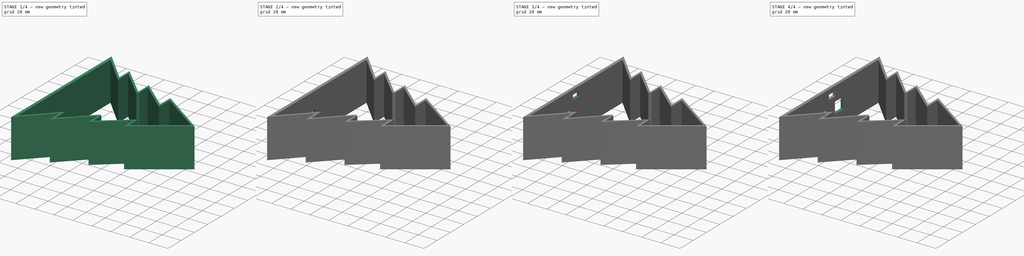
[diagram: build sequence overview — one tinted view per stage of 4, left to right]
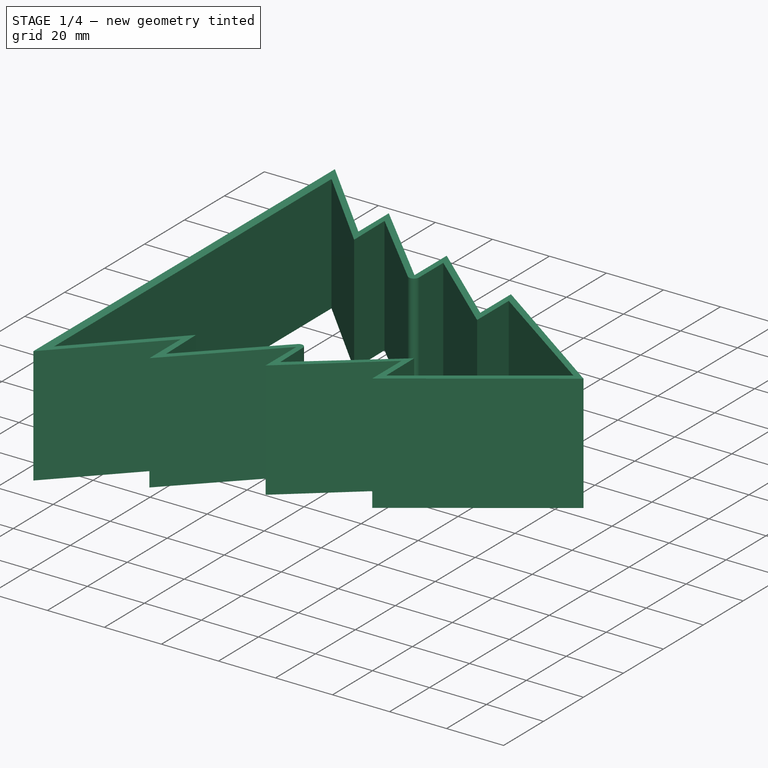
[diagram: stage 1 of 4 — iso view after this stage's code; geometry added in this stage tinted green]
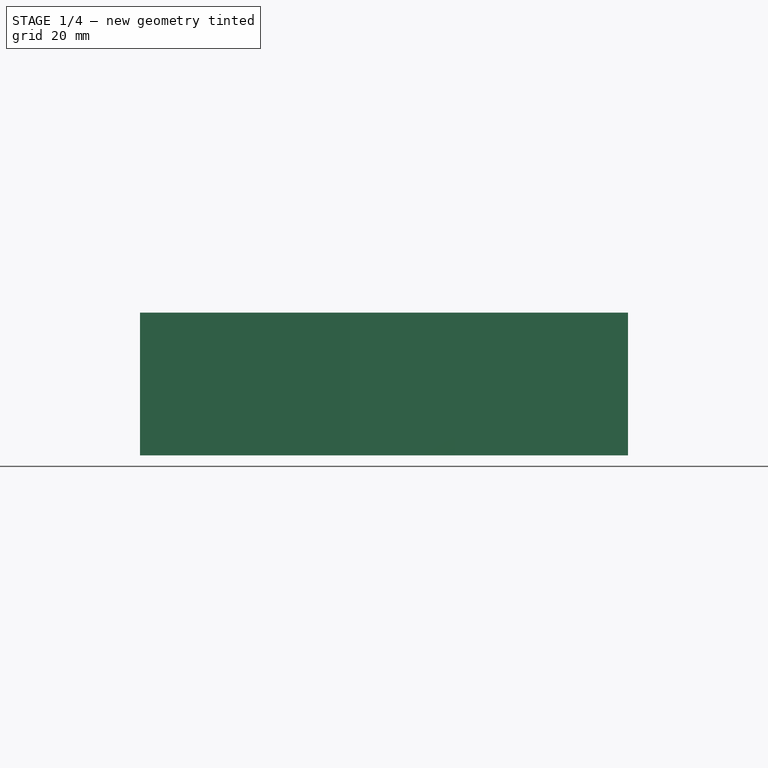
[diagram: stage 1 of 4 — front view after this stage's code; geometry added in this stage tinted green]
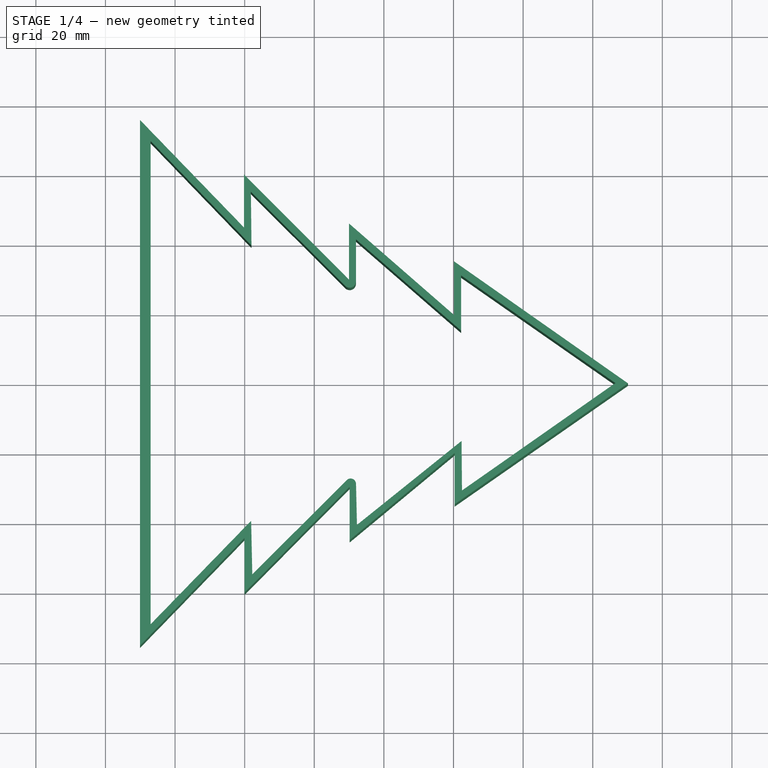
[diagram: stage 1 of 4 — top view after this stage's code; geometry added in this stage tinted green]
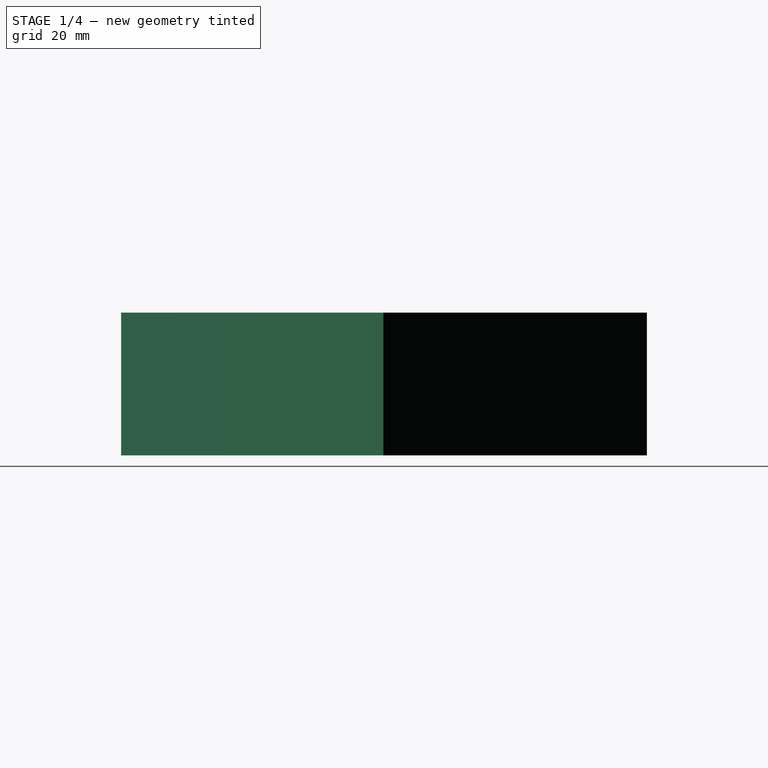
[diagram: stage 1 of 4 — right view after this stage's code; geometry added in this stage tinted green]
FCSTD DOCUMENT  (FreeCAD 0.14R3702 (Git))
Label: piece3I
License: CC-BY 3.0
LicenseURL: http://creativecommons.org/licenses/by/3.0/
objects: Part::Cut×5, Part::Box×3, Sketcher::SketchObject×2, Part::Cylinder×2, PartDesign::Pad×1, PartDesign::Pocket×1
note: 16 computed .brp shape members not serialized (recipe doc carries the construction recipe); baked Part::Feature solids carry a one-line shape summary decoded from their .brp

FEATURE [Sketcher::SketchObject] Sketch
  sketch-geometry (15):
    g0: LineSegment StartX=-130.081 StartY=75.5194 StartZ=0 EndX=-130.081 EndY=-75.5262 EndZ=0
    g1: LineSegment StartX=-130.081 StartY=75.5194 StartZ=0 EndX=-100.203 EndY=44.6299 EndZ=0
    g2: LineSegment StartX=-100.203 StartY=44.6299 StartZ=0 EndX=-100.203 EndY=59.8569 EndZ=0
    g3: LineSegment StartX=-100.203 StartY=59.8569 StartZ=0 EndX=-70.0242 EndY=29.6287 EndZ=0
    g4: LineSegment StartX=-70.0242 StartY=29.6287 StartZ=0 EndX=-70.0242 EndY=45.7666 EndZ=0
    g5: LineSegment StartX=-70.0242 StartY=45.7666 StartZ=0 EndX=-39.8749 EndY=19.5074 EndZ=0
    g6: LineSegment StartX=-39.8749 StartY=19.5074 StartZ=0 EndX=-39.8749 EndY=34.9099 EndZ=0
    g7: LineSegment StartX=-39.8749 StartY=34.9099 StartZ=0 EndX=10.1503 EndY=-0.184029 EndZ=0
    g8: LineSegment StartX=10.1503 StartY=-0.184029 StartZ=0 EndX=-39.6664 EndY=-34.9007 EndZ=0
    g9: LineSegment StartX=-39.6664 StartY=-34.9007 StartZ=0 EndX=-39.6664 EndY=-20.2105 EndZ=0
    g10: LineSegment StartX=-39.6664 StartY=-20.2105 StartZ=0 EndX=-69.8406 EndY=-45.2013 EndZ=0
    g11: LineSegment StartX=-69.8406 StartY=-45.2013 StartZ=0 EndX=-69.8406 EndY=-29.8528 EndZ=0
    g12: LineSegment StartX=-69.8406 StartY=-29.8528 StartZ=0 EndX=-100.046 EndY=-60.2838 EndZ=0
    g13: LineSegment StartX=-100.046 StartY=-60.2838 StartZ=0 EndX=-100.046 EndY=-44.6211 EndZ=0
    g14: LineSegment StartX=-100.046 StartY=-44.6211 StartZ=0 EndX=-130.081 EndY=-75.5262 EndZ=0
  constraints (22):
    c: Vertical(g0)
    c: Coincident(g1,g0)
    c: Coincident(g1,g2)
    c: Vertical(g2)
    c: Coincident(g2,g3)
    c: Coincident(g3,g4)
    c: Vertical(g4)
    c: Coincident(g4,g5)
    c: Coincident(g5,g6)
    c: Vertical(g6)
    c: Coincident(g6,g7)
    c: Coincident(g7,g8)
    c: Coincident(g8,g9)
    c: Vertical(g9)
    c: Coincident(g9,g10)
    c: Coincident(g10,g11)
    c: Vertical(g11)
    c: Coincident(g11,g12)
    c: Coincident(g12,g13)
    c: Vertical(g13)
    c: Coincident(g13,g14)
    c: Coincident(g14,g0)
FEATURE [PartDesign::Pad] Pad001  label="forme_sapin"
  Length = 41
  Length2 = 100
  Sketch = -> Sketch
  Type = 0
FEATURE [Sketcher::SketchObject] Sketch001
  Placement = pos=(0,0,41) rot=(0,0,1;0rad)
  Support = -> Pad001 [Face17]
  sketch-geometry (41):
    g0: LineSegment StartX=-127.035 StartY=69.4745 StartZ=0 EndX=-127.035 EndY=-69.4073 EndZ=0
    g1: LineSegment StartX=-127.035 StartY=-69.4073 StartZ=0 EndX=-98.1421 EndY=-39.6649 EndZ=0
    g2: LineSegment StartX=-98.1421 StartY=-39.6649 StartZ=0 EndX=-97.8154 EndY=-55.0678 EndZ=0
    g3: LineSegment StartX=-97.8154 StartY=-55.0678 StartZ=0 EndX=-70.6643 EndY=-27.972 EndZ=0
    g4: LineSegment StartX=-68.0098 StartY=-29.0375 StartZ=0 EndX=-67.7389 EndY=-40.8446 EndZ=0
    g5: LineSegment StartX=-67.7389 StartY=-40.8446 StartZ=0 EndX=-37.6839 EndY=-16.7159 EndZ=0
    g6: LineSegment StartX=-37.6839 StartY=-16.7159 StartZ=0 EndX=-37.5641 EndY=-30.9556 EndZ=0
    g7: LineSegment StartX=-37.5641 StartY=-30.9556 StartZ=0 EndX=6.51007 EndY=-0.0805062 EndZ=0
    g8: LineSegment StartX=6.51007 StartY=-0.0805062 StartZ=0 EndX=-37.8089 EndY=30.8414 EndZ=0
    g9: LineSegment StartX=-37.8089 StartY=30.8414 StartZ=0 EndX=-37.8089 EndY=14.9722 EndZ=0
    g10: LineSegment StartX=-37.8089 StartY=14.9722 StartZ=0 EndX=-68.0323 EndY=41.2064 EndZ=0
    g11: LineSegment StartX=-68.0323 StartY=41.2064 StartZ=0 EndX=-68.0323 EndY=29.1159 EndZ=0
    g12: LineSegment StartX=-71.1189 StartY=27.8361 StartZ=0 EndX=-98.2156 EndY=54.8948 EndZ=0
    g13: LineSegment StartX=-98.2156 StartY=54.8948 StartZ=0 EndX=-98.0426 EndY=39.4089 EndZ=0
    g14: LineSegment StartX=-98.0426 StartY=39.4089 StartZ=0 EndX=-127.035 EndY=69.4745 EndZ=0
    g15: LineSegment StartX=-127.035 StartY=58.9811 StartZ=0 EndX=-130.035 EndY=58.9811 EndZ=0
    g16: LineSegment StartX=-119.673 StartY=61.8396 StartZ=0 EndX=-118.299 EndY=63.2932 EndZ=0
    g17: LineSegment StartX=-103.872 StartY=45.4543 StartZ=0 EndX=-102.463 EndY=46.873 EndZ=0
    g18: LineSegment StartX=-98.1198 StartY=46.3191 StartZ=0 EndX=-100.12 EndY=46.3191 EndZ=0
    g19: LineSegment StartX=-91.8338 StartY=48.5219 StartZ=0 EndX=-90.414 EndY=49.9305 EndZ=0
    g20: LineSegment StartX=-72.6727 StartY=29.3877 StartZ=0 EndX=-71.3605 EndY=30.8971 EndZ=0
    g21: LineSegment StartX=-68.0323 StartY=32.9606 StartZ=0 EndX=-70.0323 EndY=32.9606 EndZ=0
    g22: LineSegment StartX=-60.9509 StartY=35.0597 StartZ=0 EndX=-59.6015 EndY=36.5359 EndZ=0
    g23: LineSegment StartX=-45.3308 StartY=21.5012 StartZ=0 EndX=-43.9653 EndY=22.9625 EndZ=0
    g24: LineSegment StartX=-37.8089 StartY=23.7104 StartZ=0 EndX=-39.8089 EndY=23.7104 EndZ=0
    g25: LineSegment StartX=-30.7076 StartY=25.8868 StartZ=0 EndX=-29.5165 EndY=27.4934 EndZ=0
    g26: LineSegment StartX=-2.65505 StartY=-6.50091 StartZ=0 EndX=-1.50354 EndY=-8.13615 EndZ=0
    g27: LineSegment StartX=-3.01637 StartY=6.56622 StartZ=0 EndX=-1.84727 EndY=8.18893 EndZ=0
    g28: LineSegment StartX=-127.035 StartY=-57.5277 StartZ=0 EndX=-130.035 EndY=-57.5277 EndZ=0
    g29: LineSegment StartX=-117.885 StartY=-59.9886 StartZ=0 EndX=-116.481 EndY=-61.4123 EndZ=0
    g30: LineSegment StartX=-102.617 StartY=-44.2716 StartZ=0 EndX=-101.201 EndY=-45.6841 EndZ=0
    g31: LineSegment StartX=-97.9444 StartY=-48.9845 StartZ=0 EndX=-99.9444 EndY=-48.9845 EndZ=0
    g32: LineSegment StartX=-91.21 StartY=-48.4759 StartZ=0 EndX=-89.8186 EndY=-49.9125 EndZ=0
    g33: LineSegment StartX=-76.0611 StartY=-33.3578 StartZ=0 EndX=-74.6771 EndY=-34.8016 EndZ=0
    g34: LineSegment StartX=-67.8069 StartY=-37.8809 StartZ=0 EndX=-69.8069 EndY=-37.8809 EndZ=0
    g35: LineSegment StartX=-62.4194 StartY=-36.574 StartZ=0 EndX=-61.0911 EndY=-38.0692 EndZ=0
    g36: LineSegment StartX=-44.2455 StartY=-21.9837 StartZ=0 EndX=-42.858 EndY=-23.4242 EndZ=0
    g37: LineSegment StartX=-37.6149 StartY=-24.9238 StartZ=0 EndX=-39.6138 EndY=-24.8597 EndZ=0
    g38: LineSegment StartX=-31.0088 StartY=-26.3634 StartZ=0 EndX=-29.8336 EndY=-27.9817 EndZ=0
    g39: ArcOfCircle CenterX=-69.8409 CenterY=29.1159 CenterZ=0 NormalX=0 NormalY=0 NormalZ=1 Radius=1.80862 StartAngle=3.92769 EndAngle=6.28319
    g40: ArcOfCircle CenterX=-69.5653 CenterY=-29.0732 CenterZ=0 NormalX=0 NormalY=0 NormalZ=1 Radius=1.55583 StartAngle=0.0229393 EndAngle=2.35517
  constraints (75):
    c: Vertical(g0)
    c: Coincident(g0,g1)
    c: Coincident(g1,g2)
    c: Coincident(g2,g3)
    c: Coincident(g4,g5)
    c: Coincident(g5,g6)
    c: Coincident(g6,g7)
    c: Coincident(g7,g8)
    c: Coincident(g8,g9)
    c: Vertical(g9)
    c: Coincident(g9,g10)
    c: Coincident(g10,g11)
    c: Vertical(g11)
    c: Coincident(g12,g13)
    c: Coincident(g13,g14)
    c: Coincident(g14,g0)
    c: PointOnObject(g15,g0)
    c: Horizontal(g15)
    c: PointOnObject(g16,g14)
    c: PointOnObject(g17,g14)
    c: PointOnObject(g18,g13)
    c: Horizontal(g18)
    c: PointOnObject(g19,g12)
    c: PointOnObject(g20,g12)
    c: PointOnObject(g21,g11)
    c: Horizontal(g21)
    c: PointOnObject(g22,g10)
    c: PointOnObject(g23,g10)
    c: PointOnObject(g24,g9)
    c: Horizontal(g24)
    c: PointOnObject(g25,g8)
    c: PointOnObject(g26,g7)
    c: PointOnObject(g27,g8)
    c: Distance(g26) = 2
    c: Distance(g27) = 2
    c: Distance(g25) = 2
    c: Distance(g24) = 2
    c: Distance(g23) = 2
    c: Distance(g22) = 2
    c: Distance(g21) = 2
    c: Distance(g20) = 2
    c: Distance(g19) = 2
    c: Distance(g18) = 2
    c: Distance(g17) = 2
    c: Distance(g16) = 2
    c: Distance(g15) = 3
    c: PointOnObject(g28,g0)
    c: Horizontal(g28)
    c: PointOnObject(g29,g1)
    c: PointOnObject(g30,g1)
    c: PointOnObject(g31,g2)
    c: Horizontal(g31)
    c: PointOnObject(g32,g3)
    c: PointOnObject(g33,g3)
    c: PointOnObject(g34,g4)
    c: Horizontal(g34)
    c: PointOnObject(g35,g5)
    c: PointOnObject(g36,g5)
    c: PointOnObject(g37,g6)
    c: PointOnObject(g38,g7)
    c: Distance(g38) = 2
    c: Distance(g37) = 2
    c: Distance(g36) = 2
    c: Distance(g35) = 2
    c: Distance(g34) = 2
    c: Distance(g33) = 2
    c: Distance(g32) = 2
    c: Distance(g31) = 2
    c: Distance(g30) = 2
    c: Distance(g29) = 2
    c: Distance(g28) = 3
    c: Tangent(g11,g39)
    c: Tangent(g12,g39)
    c: Tangent(g4,g40)
    c: Tangent(g3,g40)
FEATURE [PartDesign::Pocket] Pocket
  Length = 41
  Sketch = -> Sketch001
  Type = 0
FEATURE [Part::Cylinder] Cylinder001  label="Inter"
  Angle = 360
  Height = 3.06
  Placement = pos=(-130.09,-34,21) rot=(0,1,0;1.5708rad)
  Radius = 2.75
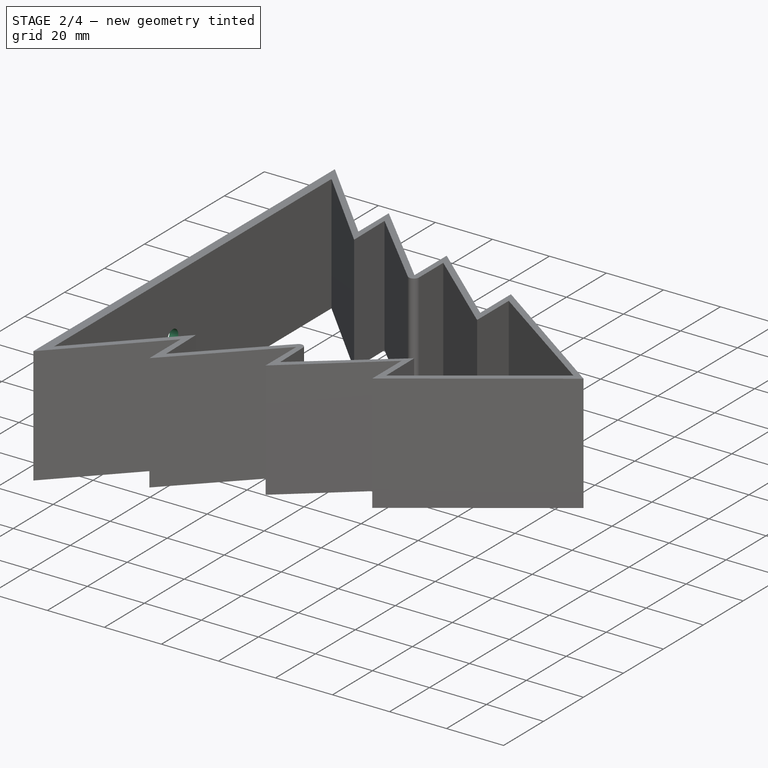
[diagram: stage 2 of 4 — iso view after this stage's code; geometry added in this stage tinted green]
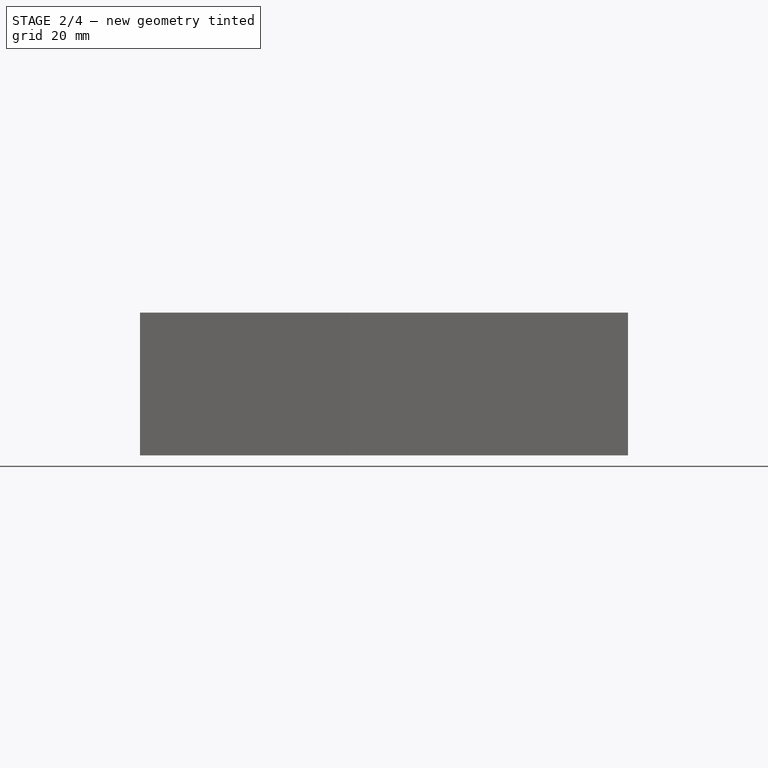
[diagram: stage 2 of 4 — front view after this stage's code; geometry added in this stage tinted green]
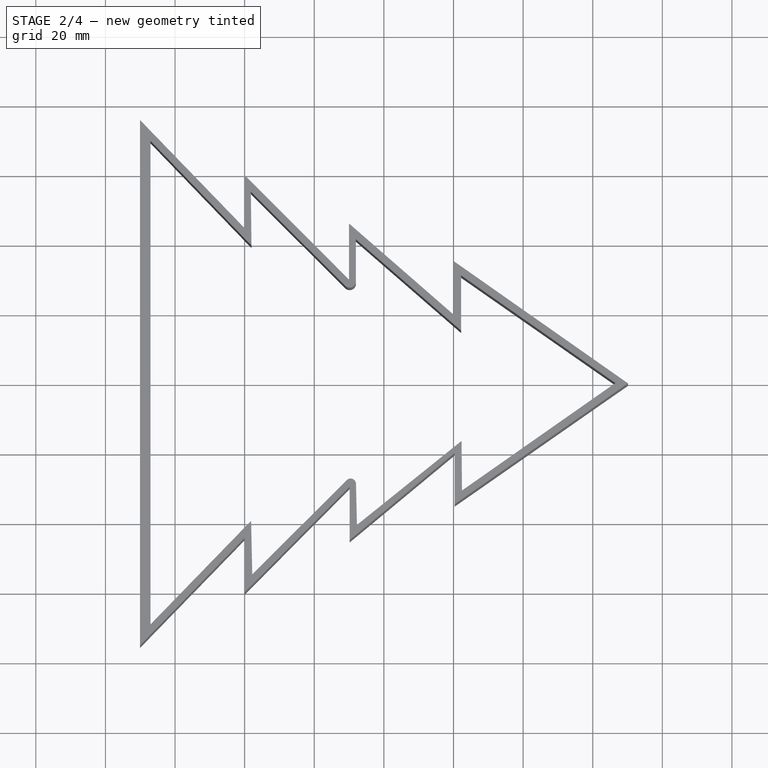
[diagram: stage 2 of 4 — top view after this stage's code; geometry added in this stage tinted green]
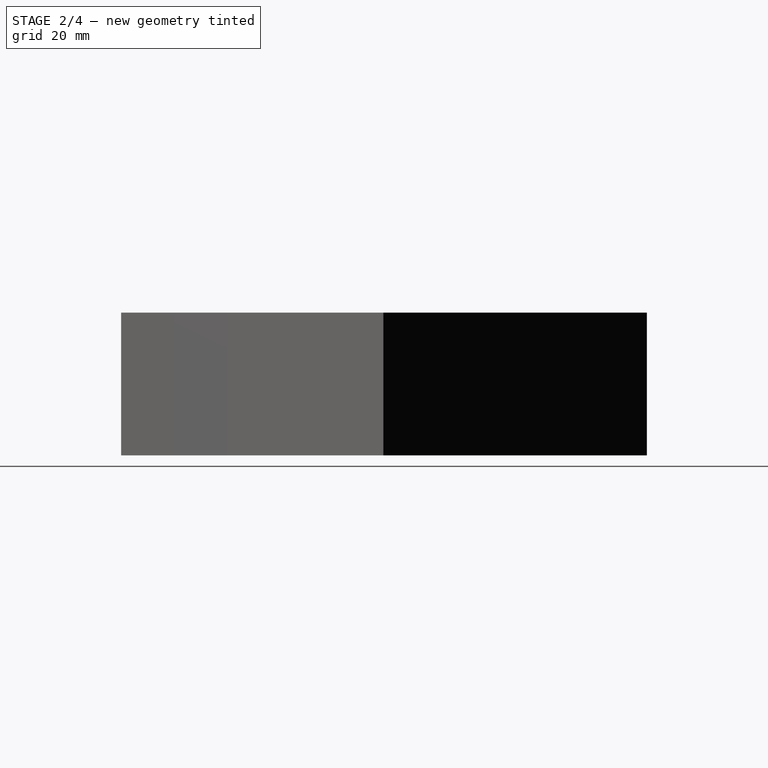
[diagram: stage 2 of 4 — right view after this stage's code; geometry added in this stage tinted green]
FEATURE [Part::Cylinder] Cylinder  label="Passage"
  Angle = 360
  Height = 3.1
  Placement = pos=(-130.1,-10,21) rot=(0,1,0;1.5708rad)
  Radius = 2.75
FEATURE [Part::Cut] Cut
  Base = -> Pocket
  Tool = -> Cylinder001
FEATURE [Part::Cut] Cut001
  Base = -> Cut
  Tool = -> Cylinder
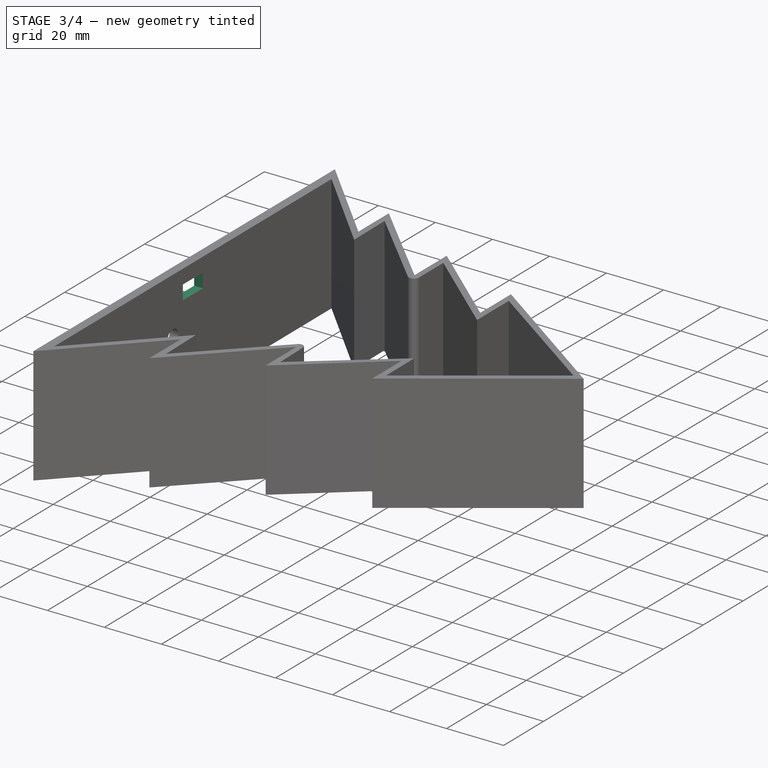
[diagram: stage 3 of 4 — iso view after this stage's code; geometry added in this stage tinted green]
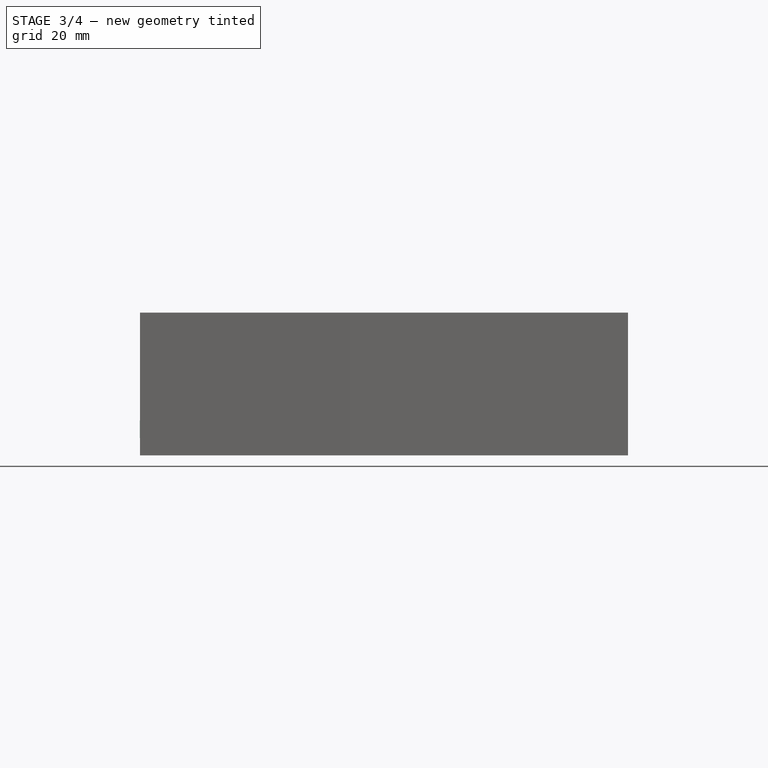
[diagram: stage 3 of 4 — front view after this stage's code; geometry added in this stage tinted green]
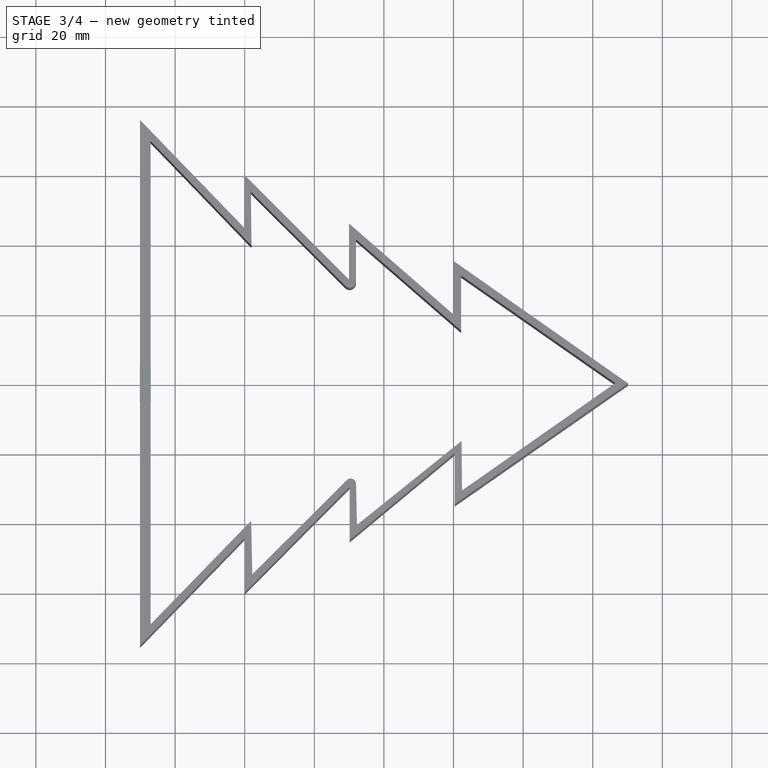
[diagram: stage 3 of 4 — top view after this stage's code; geometry added in this stage tinted green]
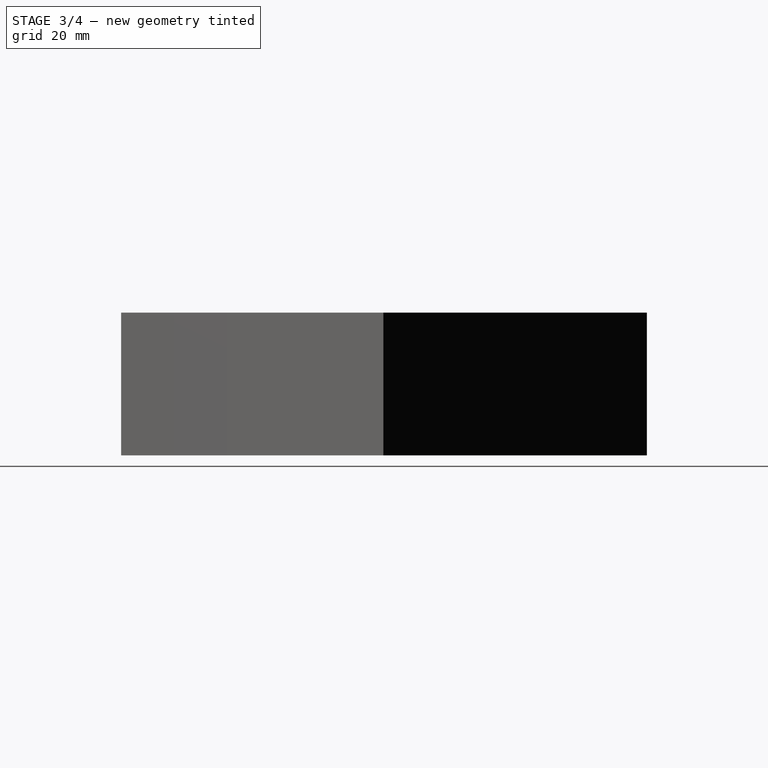
[diagram: stage 3 of 4 — right view after this stage's code; geometry added in this stage tinted green]
FEATURE [Part::Box] Box001  label="FixAV"
  Height = 5
  Length = 3.1
  Placement = pos=(-130.1,-5,5) rot=(0,0,1;0rad)
  Width = 10
FEATURE [Part::Box] Box002  label="FixAR"
  Height = 5
  Length = 3.1
  Placement = pos=(-130.1,-5,31) rot=(0,0,1;0rad)
  Width = 10
FEATURE [Part::Cut] Cut002
  Base = -> Cut001
  Tool = -> Box002
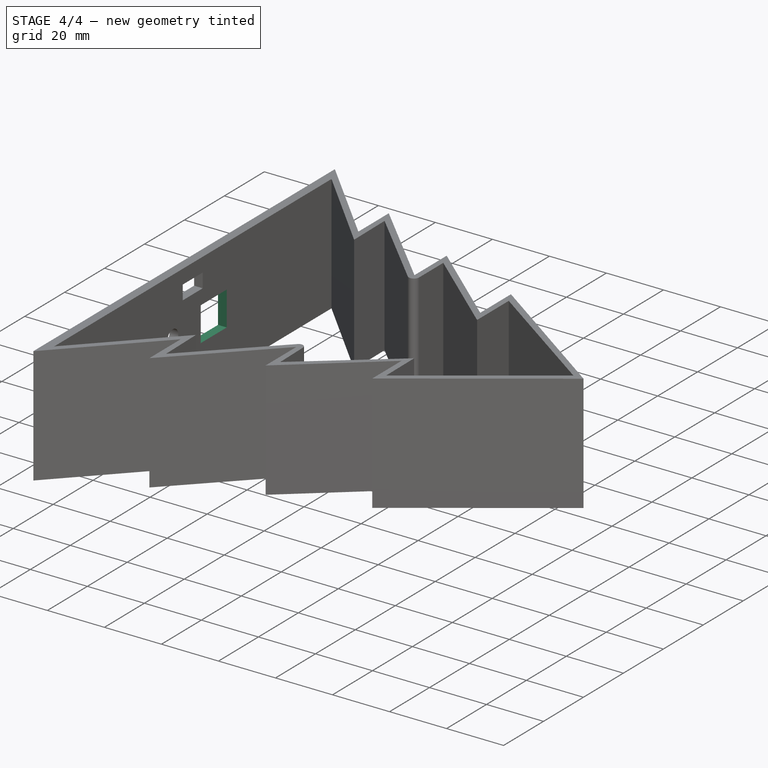
[diagram: stage 4 of 4 — iso view after this stage's code; geometry added in this stage tinted green]
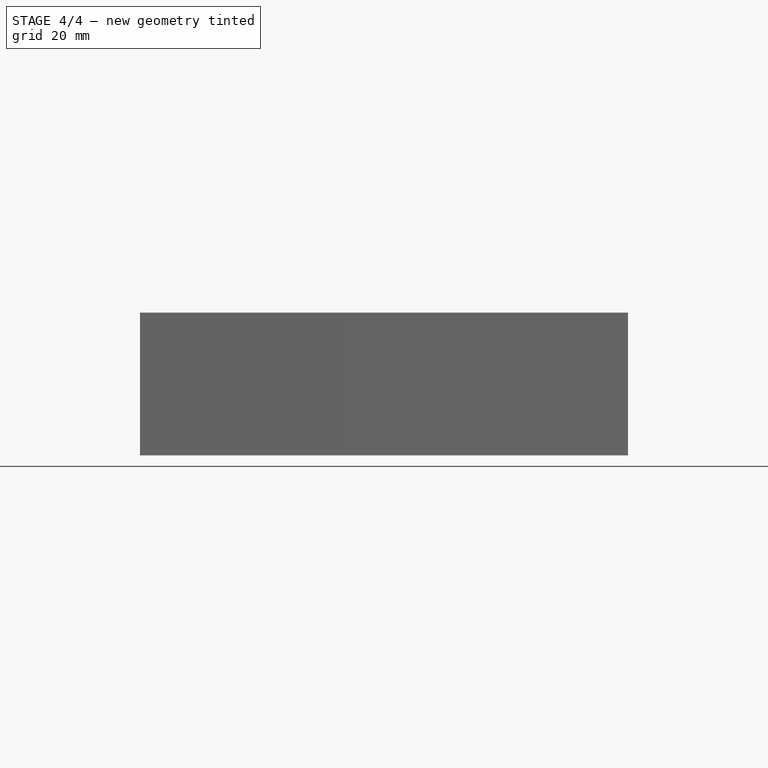
[diagram: stage 4 of 4 — front view after this stage's code; geometry added in this stage tinted green]
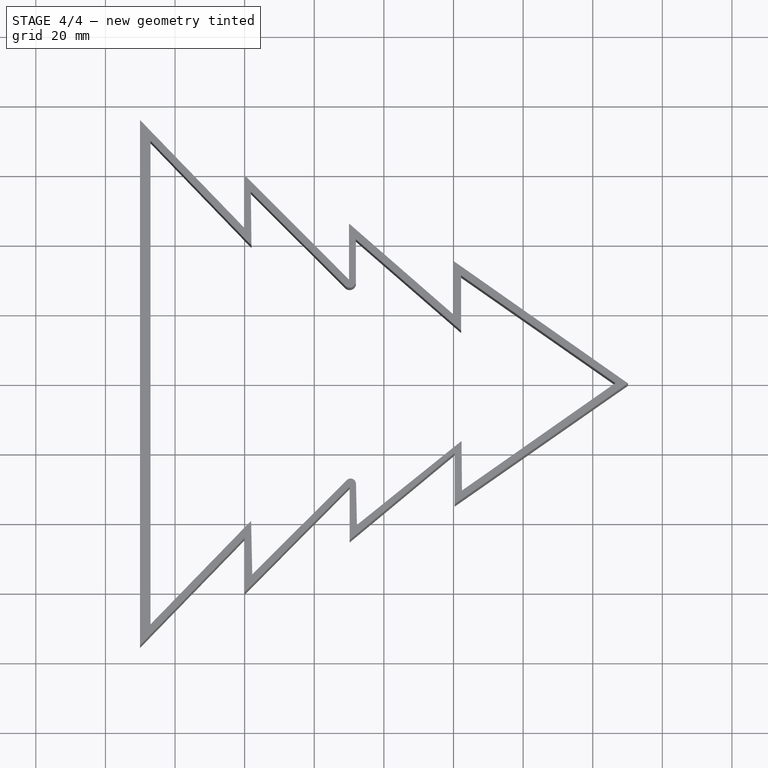
[diagram: stage 4 of 4 — top view after this stage's code; geometry added in this stage tinted green]
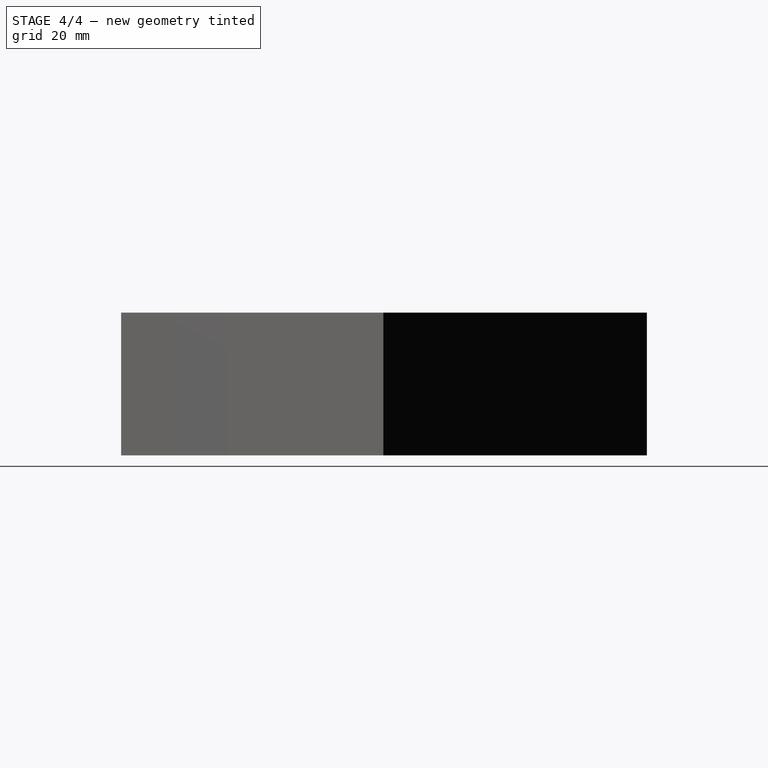
[diagram: stage 4 of 4 — right view after this stage's code; geometry added in this stage tinted green]
FEATURE [Part::Box] Box  label="Usb"
  Height = 12
  Length = 3.1
  Placement = pos=(-130.1,4,14) rot=(0,0,1;0rad)
  Width = 13
FEATURE [Part::Cut] Cut003
  Base = -> Cut002
  Tool = -> Box001
FEATURE [Part::Cut] Cut004
  Base = -> Cut003
  Tool = -> Box
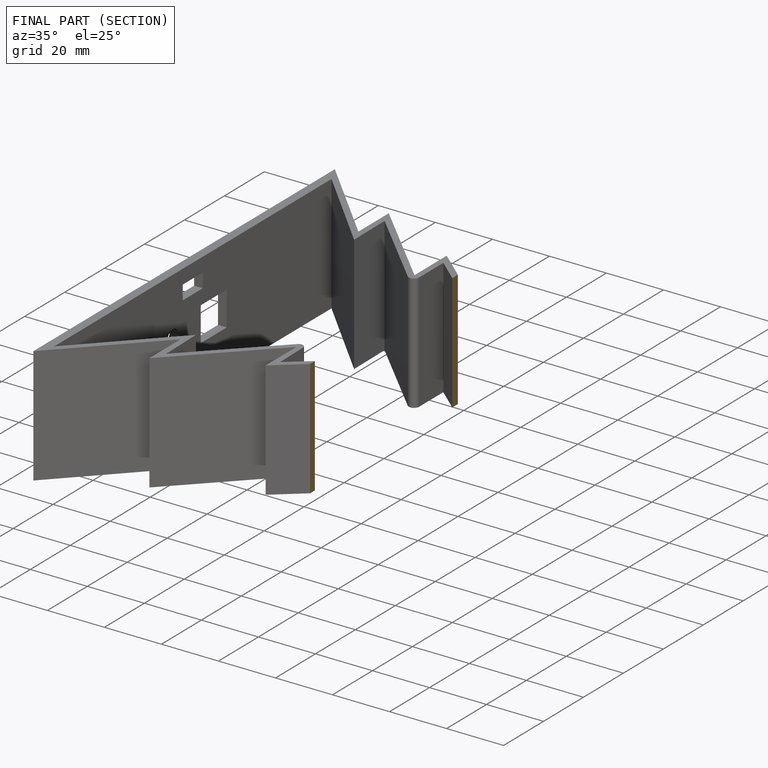
[diagram: finished part — half-section view (interior)]
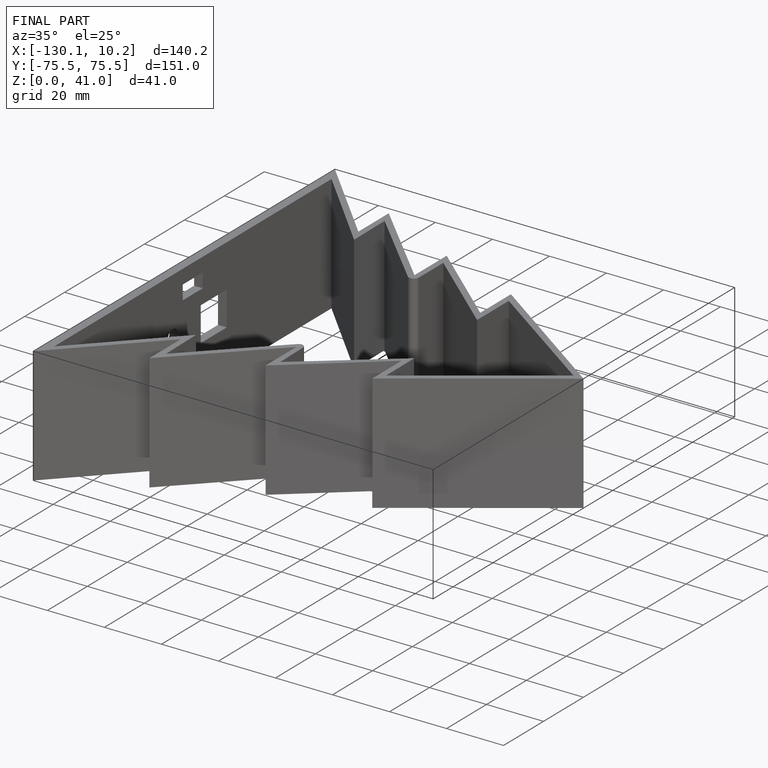
[diagram: finished part — iso view with bounding-box wireframe]
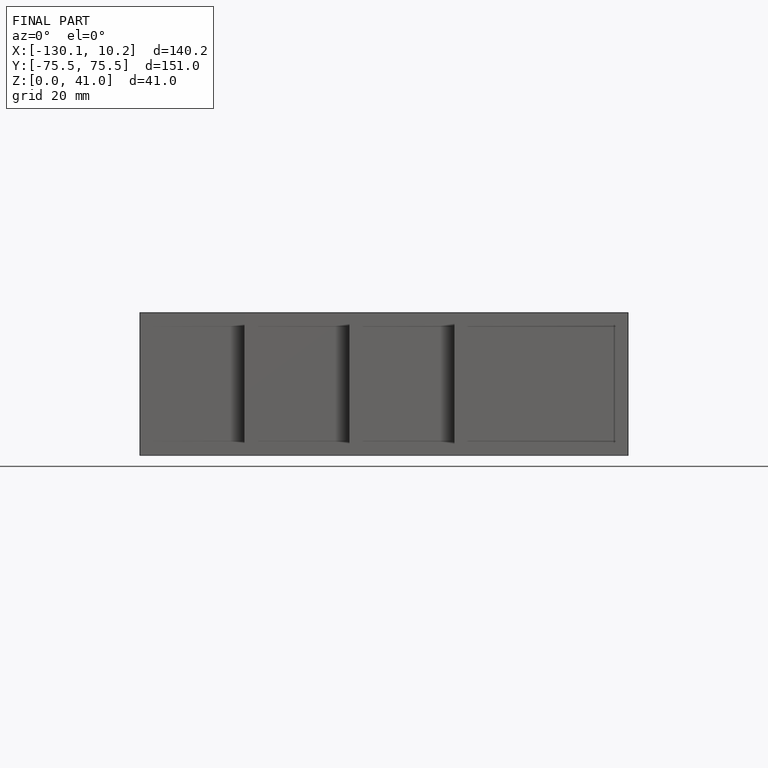
[diagram: finished part — front view with bounding-box wireframe]
